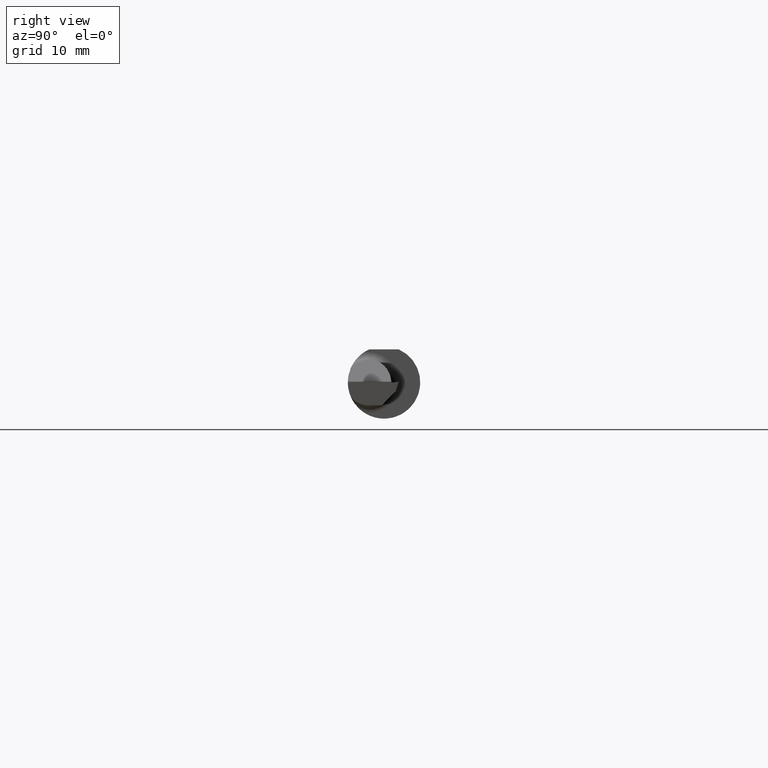
[diagram: clean part render]
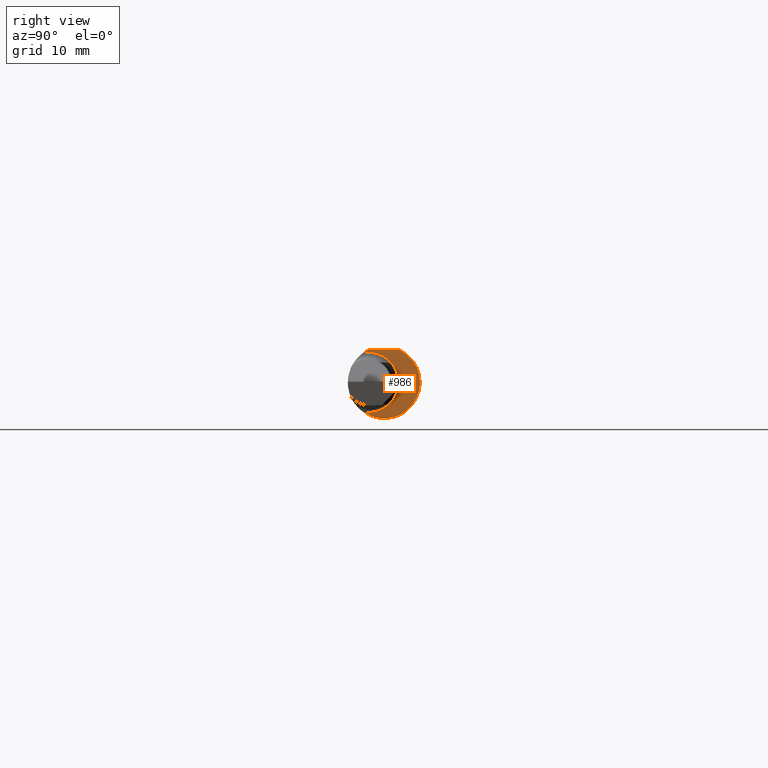
[diagram: same view with one face highlighted and labeled with its STEP entity id]
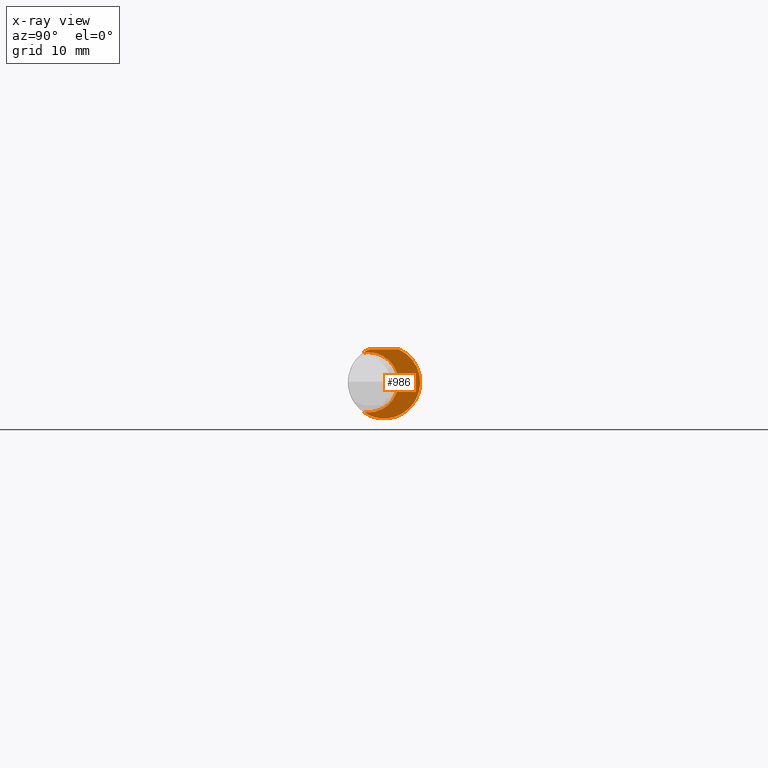
[diagram: x-ray of the same camera — body ghosted, the highlighted face saturated]
A machine part, right view. The second image highlights one B-rep face of the part: STEP entity #986.
The next image is the same camera in x-ray: the body ghosted, the highlighted face saturated — about 0% of this face is hidden behind the body in this view.
In plain terms, the highlighted planar face has unit normal (1, 0, 0).
Its self-contained STEP definition (entity closure, byte-faithful):
#20 = FACE_OUTER_BOUND ( 'NONE', #104, .T. ) ;
#46 = PLANE ( 'NONE',  #145 ) ;
#66 = VECTOR ( 'NONE', #667, 39.37007874015748143 ) ;
#69 = LINE ( 'NONE', #684, #66 ) ;
#85 = DIRECTION ( 'NONE',  ( -1.000000000000000000, -0.000000000000000000, -0.000000000000000000 ) ) ;
#97 = DIRECTION ( 'NONE',  ( -1.000000000000000000, -0.000000000000000000, -0.000000000000000000 ) ) ;
#104 = EDGE_LOOP ( 'NONE', ( #379, #964, #249, #1117, #861, #853 ) ) ;
#124 = DIRECTION ( 'NONE',  ( -1.000000000000000000, -0.000000000000000000, -0.000000000000000000 ) ) ;
#145 = AXIS2_PLACEMENT_3D ( 'NONE', #541, #622, #1034 ) ;
#180 = CARTESIAN_POINT ( 'NONE',  ( 1.709999999999999964, -0.07122883008356545309, -0.1025376821706369679 ) ) ;
#186 = DIRECTION ( 'NONE',  ( 0.000000000000000000, 0.000000000000000000, -1.000000000000000000 ) ) ;
#200 = CARTESIAN_POINT ( 'NONE',  ( 1.709999999999999964, -0.05385000000000000897, -0.1040000000000000091 ) ) ;
#202 = CARTESIAN_POINT ( 'NONE',  ( 1.709999999999999964, 0.000000000000000000, 0.000000000000000000 ) ) ;
#208 = AXIS2_PLACEMENT_3D ( 'NONE', #636, #1220, #747 ) ;
#222 = EDGE_CURVE ( 'NONE', #722, #473, #932, .T. ) ;
#249 = ORIENTED_EDGE ( 'NONE', *, *, #222, .T. ) ;
#310 = CARTESIAN_POINT ( 'NONE',  ( 1.709999999999999964, -0.07122883008356545309, 0.1025376821706369818 ) ) ;
#316 = CIRCLE ( 'NONE', #208, 0.1248500000000000026 ) ;
#357 = AXIS2_PLACEMENT_3D ( 'NONE', #1199, #124, #514 ) ;
#379 = ORIENTED_EDGE ( 'NONE', *, *, #525, .T. ) ;
#408 = EDGE_CURVE ( 'NONE', #949, #722, #1205, .T. ) ;
#473 = VERTEX_POINT ( 'NONE', #200 ) ;
#496 = VERTEX_POINT ( 'NONE', #604 ) ;
#514 = DIRECTION ( 'NONE',  ( 0.000000000000000000, 8.865372094823929743E-15, -1.000000000000000000 ) ) ;
#525 = EDGE_CURVE ( 'NONE', #767, #949, #316, .T. ) ;
#541 = CARTESIAN_POINT ( 'NONE',  ( 1.709999999999999964, 0.1751499999999999724, 0.000000000000000000 ) ) ;
#556 = CARTESIAN_POINT ( 'NONE',  ( 1.709999999999999964, -0.05385000000000000203, 0.1040000000000000091 ) ) ;
#602 = DIRECTION ( 'NONE',  ( 1.000000000000000000, 0.000000000000000000, 0.000000000000000000 ) ) ;
#604 = CARTESIAN_POINT ( 'NONE',  ( 1.709999999999999964, 0.05124158467494929065, 0.1138500000000000068 ) ) ;
#622 = DIRECTION ( 'NONE',  ( 1.000000000000000000, 0.000000000000000000, 0.000000000000000000 ) ) ;
#636 = CARTESIAN_POINT ( 'NONE',  ( 1.709999999999999964, 0.000000000000000000, 0.000000000000000000 ) ) ;
#645 = AXIS2_PLACEMENT_3D ( 'NONE', #880, #97, #785 ) ;
#667 = DIRECTION ( 'NONE',  ( 0.000000000000000000, -1.000000000000000000, 0.000000000000000000 ) ) ;
#678 = EDGE_CURVE ( 'NONE', #473, #716, #1019, .T. ) ;
#684 = CARTESIAN_POINT ( 'NONE',  ( 1.709999999999999964, 0.1000000000000000056, 0.1138500000000000068 ) ) ;
#716 = VERTEX_POINT ( 'NONE', #180 ) ;
#722 = VERTEX_POINT ( 'NONE', #556 ) ;
#729 = EDGE_CURVE ( 'NONE', #496, #767, #69, .T. ) ;
#747 = DIRECTION ( 'NONE',  ( 0.000000000000000000, 0.000000000000000000, -1.000000000000000000 ) ) ;
#753 = CARTESIAN_POINT ( 'NONE',  ( 1.709999999999999964, -0.05124158467494929065, 0.1138500000000000068 ) ) ;
#767 = VERTEX_POINT ( 'NONE', #753 ) ;
#777 = AXIS2_PLACEMENT_3D ( 'NONE', #202, #602, #996 ) ;
#785 = DIRECTION ( 'NONE',  ( 0.000000000000000000, 0.000000000000000000, -1.000000000000000000 ) ) ;
#837 = AXIS2_PLACEMENT_3D ( 'NONE', #958, #85, #186 ) ;
#853 = ORIENTED_EDGE ( 'NONE', *, *, #729, .T. ) ;
#861 = ORIENTED_EDGE ( 'NONE', *, *, #940, .T. ) ;
#880 = CARTESIAN_POINT ( 'NONE',  ( 1.709999999999999964, -0.05385000000000000897, 0.000000000000000000 ) ) ;
#932 = CIRCLE ( 'NONE', #645, 0.1040000000000000091 ) ;
#940 = EDGE_CURVE ( 'NONE', #716, #496, #1140, .T. ) ;
#949 = VERTEX_POINT ( 'NONE', #310 ) ;
#958 = CARTESIAN_POINT ( 'NONE',  ( 1.709999999999999964, -0.05385000000000000897, 0.000000000000000000 ) ) ;
#964 = ORIENTED_EDGE ( 'NONE', *, *, #408, .T. ) ;
#986 = ADVANCED_FACE ( 'NONE', ( #20 ), #46, .T. ) ;
#996 = DIRECTION ( 'NONE',  ( 0.000000000000000000, 0.000000000000000000, -1.000000000000000000 ) ) ;
#1019 = CIRCLE ( 'NONE', #837, 0.1040000000000000091 ) ;
#1034 = DIRECTION ( 'NONE',  ( 0.000000000000000000, 0.000000000000000000, -1.000000000000000000 ) ) ;
#1117 = ORIENTED_EDGE ( 'NONE', *, *, #678, .T. ) ;
#1140 = CIRCLE ( 'NONE', #777, 0.1248500000000000026 ) ;
#1199 = CARTESIAN_POINT ( 'NONE',  ( 1.709999999999999964, -0.05385000000000000897, 0.000000000000000000 ) ) ;
#1205 = CIRCLE ( 'NONE', #357, 0.1040000000000000091 ) ;
#1220 = DIRECTION ( 'NONE',  ( 1.000000000000000000, 0.000000000000000000, 0.000000000000000000 ) ) ;